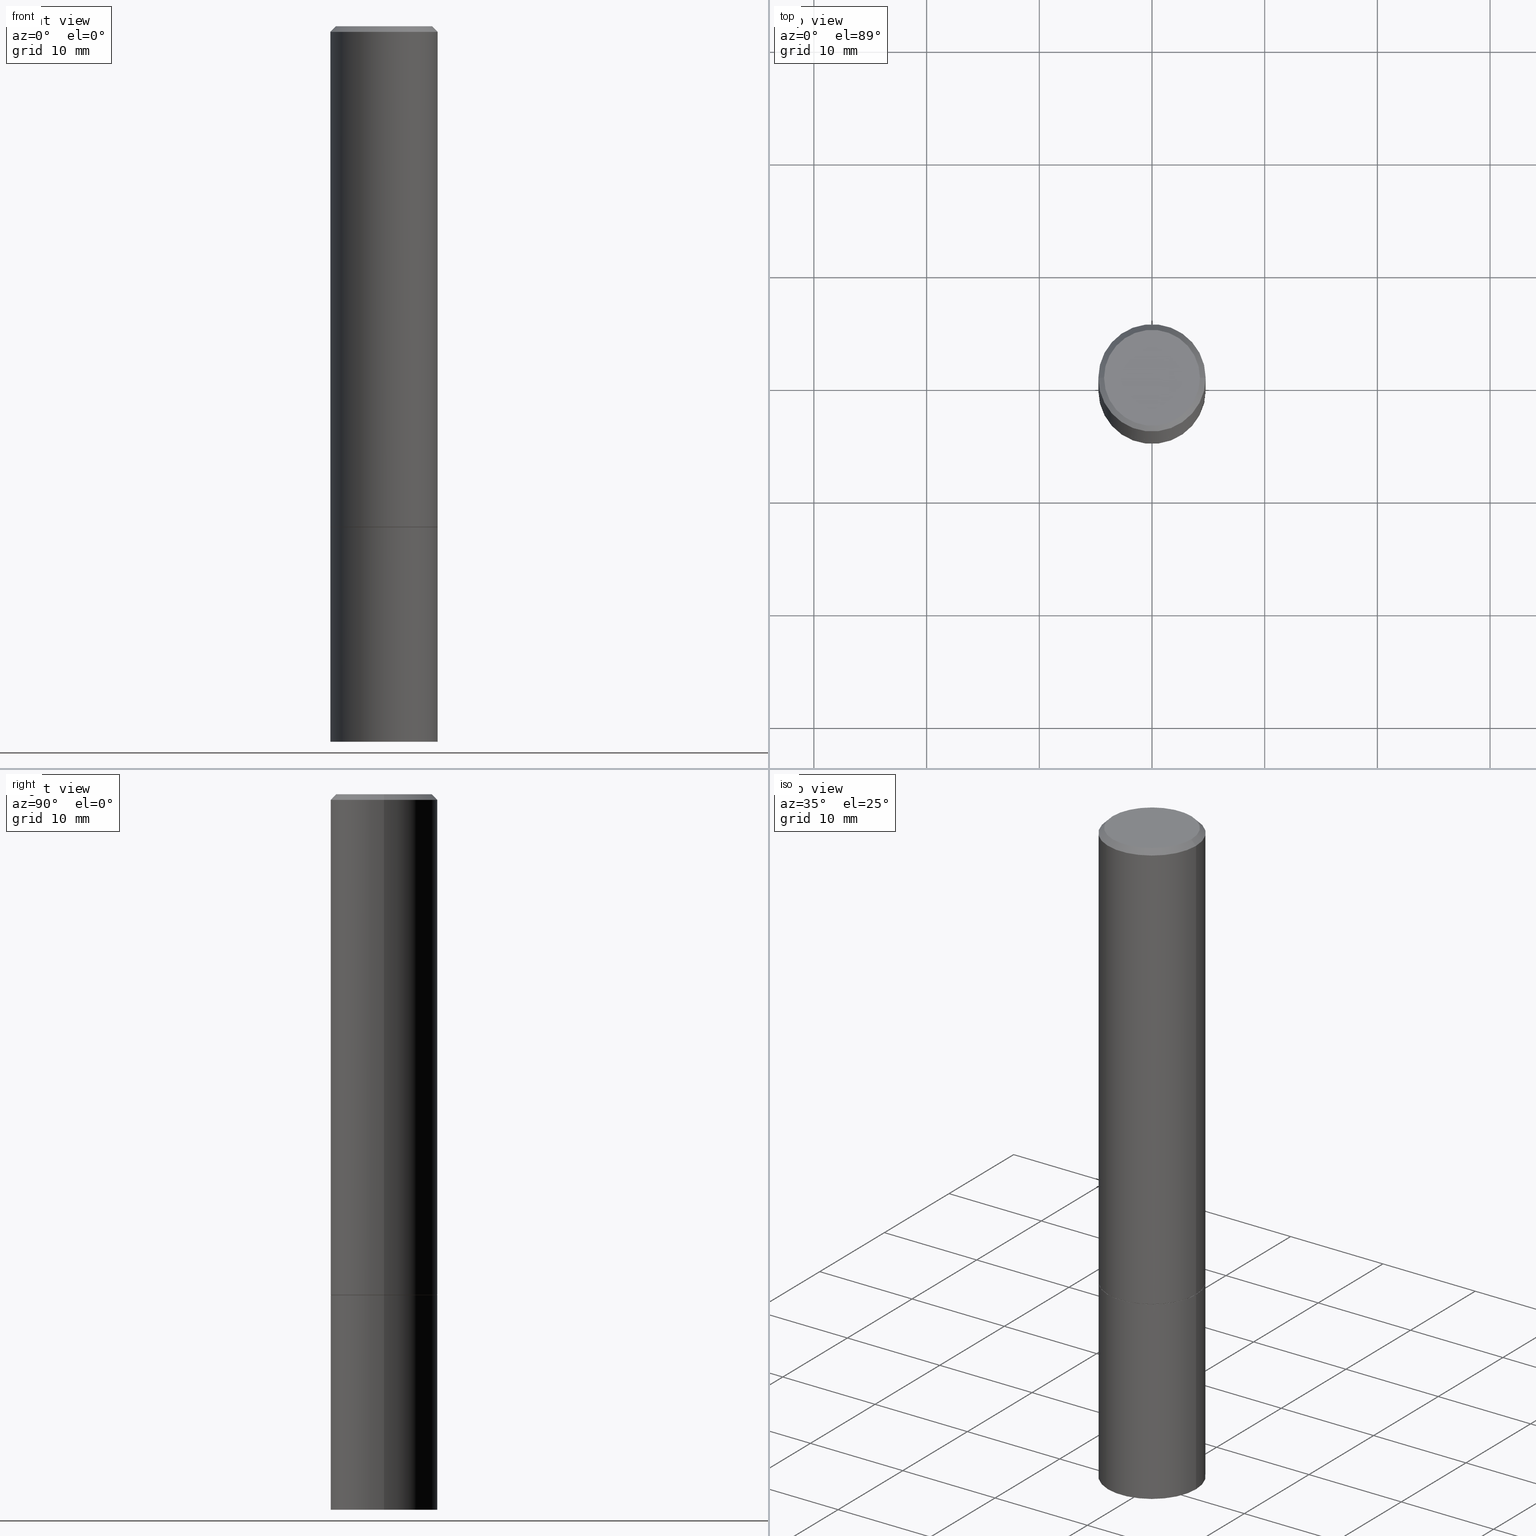
[diagram: canonical four-view strip — front | top / right | iso, engineering-drawing reading convention]
A machine part, canonical four-view strip (front | top / right | iso — engineering-drawing reading convention). The complete STEP part file that produces these views, byte-faithful:
ISO-10303-21;
HEADER;
FILE_DESCRIPTION (( 'STEP AP203' ),
    '1' );
FILE_NAME ('37021.STEP',
    '2024-02-27T20:12:07',
    ( '' ),
    ( '' ),
    'SwSTEP 2.0',
    'SolidWorks 2023',
    '' );
FILE_SCHEMA (( 'CONFIG_CONTROL_DESIGN' ));
ENDSEC;

DATA;
#1 = DESIGN_CONTEXT ( 'detailed design', #129, 'design' ) ;
#2 = CALENDAR_DATE ( 2024, 27, 2 ) ;
#3 = EDGE_LOOP ( 'NONE', ( #171, #86, #259, #351 ) ) ;
#4 = LINE ( 'NONE', #67, #323 ) ;
#5 = AXIS2_PLACEMENT_3D ( 'NONE', #74, #236, #71 ) ;
#6 = AXIS2_PLACEMENT_3D ( 'NONE', #128, #103, #337 ) ;
#7 = CARTESIAN_POINT ( 'NONE',  ( 0.1874999999999997502, -1.356173001359023494E-15, -0.02000000000000004552 ) ) ;
#8 = CYLINDRICAL_SURFACE ( 'NONE', #131, 0.1874999999999998890 ) ;
#9 = ORIENTED_EDGE ( 'NONE', *, *, #292, .F. ) ;
#10 = DIRECTION ( 'NONE',  ( -2.445468806185136597E-29, 3.491481338843145583E-15, 1.000000000000000000 ) ) ;
#11 = AXIS2_PLACEMENT_3D ( 'NONE', #125, #265, #120 ) ;
#12 = DIRECTION ( 'NONE',  ( -2.445468806185136597E-29, 3.491481338843145583E-15, 1.000000000000000000 ) ) ;
#13 = APPROVAL_ROLE ( '' ) ;
#14 = FACE_OUTER_BOUND ( 'NONE', #207, .T. ) ;
#15 = LINE ( 'NONE', #239, #87 ) ;
#16 = EDGE_CURVE ( 'NONE', #47, #347, #82, .T. ) ;
#17 = FACE_OUTER_BOUND ( 'NONE', #28, .T. ) ;
#18 = DIRECTION ( 'NONE',  ( 1.000000000000000000, -6.982962677686266711E-15, 0.000000000000000000 ) ) ;
#19 = DIRECTION ( 'NONE',  ( -2.445468806185136597E-29, 3.491481338843145583E-15, 1.000000000000000000 ) ) ;
#20 = ADVANCED_FACE ( 'NONE', ( #209 ), #200, .T. ) ;
#21 = MECHANICAL_CONTEXT ( 'NONE', #309, 'mechanical' ) ;
#22 = AXIS2_PLACEMENT_3D ( 'NONE', #36, #167, #346 ) ;
#23 = ADVANCED_FACE ( 'NONE', ( #307 ), #117, .F. ) ;
#24 = DIRECTION ( 'NONE',  ( 1.000000000000000000, 0.000000000000000000, 0.000000000000000000 ) ) ;
#25 = CC_DESIGN_SECURITY_CLASSIFICATION ( #156, ( #336 ) ) ;
#26 = CARTESIAN_POINT ( 'NONE',  ( 0.1875000000000000278, -1.003800884917403995E-14, -2.500000000000000000 ) ) ;
#27 = EDGE_CURVE ( 'NONE', #108, #229, #141, .T. ) ;
#28 = EDGE_LOOP ( 'NONE', ( #142, #268, #341, #315 ) ) ;
#29 = ORIENTED_EDGE ( 'NONE', *, *, #176, .T. ) ;
#30 = VERTEX_POINT ( 'NONE', #139 ) ;
#31 = CC_DESIGN_APPROVAL ( #340, ( #156 ) ) ;
#32 = LINE ( 'NONE', #135, #331 ) ;
#33 = ORIENTED_EDGE ( 'NONE', *, *, #295, .T. ) ;
#34 = PERSON_AND_ORGANIZATION_ROLE ( 'classification_officer' ) ;
#35 = EDGE_CURVE ( 'NONE', #179, #198, #226, .T. ) ;
#36 = CARTESIAN_POINT ( 'NONE',  ( 0.000000000000000000, 0.000000000000000000, 0.000000000000000000 ) ) ;
#37 = ORIENTED_EDGE ( 'NONE', *, *, #257, .T. ) ;
#38 = ADVANCED_FACE ( 'NONE', ( #258 ), #8, .T. ) ;
#39 = UNCERTAINTY_MEASURE_WITH_UNIT (LENGTH_MEASURE( 1.000000000000000082E-05 ), #334, 'distance_accuracy_value', 'NONE');
#40 = CARTESIAN_POINT ( 'NONE',  ( 0.000000000000000000, 0.000000000000000000, 0.000000000000000000 ) ) ;
#41 = COORDINATED_UNIVERSAL_TIME_OFFSET ( 5, 0, .BEHIND. ) ;
#42 = CIRCLE ( 'NONE', #94, 0.1875000000000000278 ) ;
#43 = DIRECTION ( 'NONE',  ( -2.438088387897960049E-29, 3.491481338843145188E-15, 1.000000000000000000 ) ) ;
#44 = ORIENTED_EDGE ( 'NONE', *, *, #320, .F. ) ;
#45 = APPROVAL_DATE_TIME ( #291, #246 ) ;
#46 = DIRECTION ( 'NONE',  ( 1.000000000000000000, -6.982962677686265922E-15, 4.876176775795935793E-29 ) ) ;
#47 = VERTEX_POINT ( 'NONE', #256 ) ;
#48 = PLANE ( 'NONE',  #212 ) ;
#49 = AXIS2_PLACEMENT_3D ( 'NONE', #40, #58, #262 ) ;
#50 = LOCAL_TIME ( 15, 12, 7.000000000000000000, #194 ) ;
#51 = DIRECTION ( 'NONE',  ( -2.445468806185136597E-29, 3.491481338843145583E-15, 1.000000000000000000 ) ) ;
#52 = DIRECTION ( 'NONE',  ( 1.000000000000000000, -6.982962677686265922E-15, 0.000000000000000000 ) ) ;
#53 = DIRECTION ( 'NONE',  ( -2.445468806185136597E-29, 3.491481338843145583E-15, 1.000000000000000000 ) ) ;
#54 = DIRECTION ( 'NONE',  ( -0.7071067811865112684, 7.493145998870223209E-15, 0.7071067811865837660 ) ) ;
#55 = CIRCLE ( 'NONE', #145, 0.1875000000000000278 ) ;
#56 = APPROVAL_STATUS ( 'not_yet_approved' ) ;
#57 = AXIS2_PLACEMENT_3D ( 'NONE', #95, #51, #152 ) ;
#58 = DIRECTION ( 'NONE',  ( -2.445468806185136597E-29, 3.491481338843145583E-15, 1.000000000000000000 ) ) ;
#59 = ORIENTED_EDGE ( 'NONE', *, *, #248, .F. ) ;
#60 = DIRECTION ( 'NONE',  ( -1.000000000000000000, 6.982962677686265133E-15, 0.000000000000000000 ) ) ;
#61 = AXIS2_PLACEMENT_3D ( 'NONE', #282, #231, #81 ) ;
#62 = ORIENTED_EDGE ( 'NONE', *, *, #97, .F. ) ;
#63 = DATE_AND_TIME ( #303, #50 ) ;
#64 = DIRECTION ( 'NONE',  ( 1.000000000000000000, -6.982962677686265922E-15, 4.876176775795935793E-29 ) ) ;
#65 = ORIENTED_EDGE ( 'NONE', *, *, #286, .T. ) ;
#66 = APPROVAL_STATUS ( 'not_yet_approved' ) ;
#67 = CARTESIAN_POINT ( 'NONE',  ( -0.1874999999999998890, 1.332267629550187060E-15, -9.223003294227942385E-30 ) ) ;
#68 = PERSON_AND_ORGANIZATION ( #311, #89 ) ;
#69 = DIRECTION ( 'NONE',  ( -2.445468806185136597E-29, 3.491481338843145583E-15, 1.000000000000000000 ) ) ;
#70 = LINE ( 'NONE', #298, #300 ) ;
#71 = DIRECTION ( 'NONE',  ( 1.000000000000000000, -6.982962677686265922E-15, 4.876176775795935793E-29 ) ) ;
#72 = EDGE_CURVE ( 'NONE', #30, #108, #277, .T. ) ;
#73 = VECTOR ( 'NONE', #318, 39.37007874015748143 ) ;
#74 = CARTESIAN_POINT ( 'NONE',  ( 0.000000000000000000, 0.000000000000000000, 0.000000000000000000 ) ) ;
#75 = ADVANCED_FACE ( 'NONE', ( #290 ), #116, .T. ) ;
#76 = PERSON_AND_ORGANIZATION_ROLE ( 'creator' ) ;
#77 = AXIS2_PLACEMENT_3D ( 'NONE', #217, #304, #365 ) ;
#78 = CARTESIAN_POINT ( 'NONE',  ( -0.1865000000000000546, -4.784930140782917831E-15, -1.750000000000000222 ) ) ;
#79 = CARTESIAN_POINT ( 'NONE',  ( 4.277124942017804562E-29, -6.106600861636661664E-15, -1.749000000000000110 ) ) ;
#80 = EDGE_CURVE ( 'NONE', #228, #174, #4, .T. ) ;
#81 = DIRECTION ( 'NONE',  ( -1.000000000000000000, 6.982962677686265922E-15, -4.876176775795935793E-29 ) ) ;
#82 = LINE ( 'NONE', #7, #314 ) ;
#83 = ORIENTED_EDGE ( 'NONE', *, *, #80, .F. ) ;
#84 = VERTEX_POINT ( 'NONE', #178 ) ;
#85 = COORDINATED_UNIVERSAL_TIME_OFFSET ( 5, 0, .BEHIND. ) ;
#86 = ORIENTED_EDGE ( 'NONE', *, *, #72, .T. ) ;
#87 = VECTOR ( 'NONE', #215, 39.37007874015748143 ) ;
#88 = EDGE_LOOP ( 'NONE', ( #44, #310 ) ) ;
#89 = ORGANIZATION ( 'UNSPECIFIED', 'UNSPECIFIED', '' ) ;
#90 = CARTESIAN_POINT ( 'NONE',  ( 1.309305502066236145E-15, 0.1874999999999912847, -2.500000000000000444 ) ) ;
#91 = EDGE_LOOP ( 'NONE', ( #111, #224, #65, #317 ) ) ;
#92 = PRODUCT_DEFINITION ( 'UNKNOWN', '', #336, #1 ) ;
#93 = CARTESIAN_POINT ( 'NONE',  ( 1.309305502066217804E-15, 0.1874999999999938938, -1.750000000000000666 ) ) ;
#94 = AXIS2_PLACEMENT_3D ( 'NONE', #157, #218, #279 ) ;
#95 = CARTESIAN_POINT ( 'NONE',  ( 4.890937612370284544E-31, -6.982962677686307633E-17, -0.02000000000000004552 ) ) ;
#96 = CARTESIAN_POINT ( 'NONE',  ( 4.277124942017804562E-29, -6.106600861636661664E-15, -1.749000000000000110 ) ) ;
#97 = EDGE_CURVE ( 'NONE', #47, #84, #293, .T. ) ;
#98 = DIRECTION ( 'NONE',  ( 2.438088387897960049E-29, -3.491481338843145188E-15, -1.000000000000000000 ) ) ;
#99 = CIRCLE ( 'NONE', #197, 0.1865000000000000546 ) ;
#100 =( LENGTH_UNIT ( ) NAMED_UNIT ( * ) SI_UNIT ( $, .METRE. ) );
#101 = PERSON_AND_ORGANIZATION ( #311, #89 ) ;
#102 = PERSON_AND_ORGANIZATION_ROLE ( 'design_owner' ) ;
#103 = DIRECTION ( 'NONE',  ( -2.445468806185136597E-29, 3.491481338843145583E-15, 1.000000000000000000 ) ) ;
#104 = AXIS2_PLACEMENT_3D ( 'NONE', #187, #19, #18 ) ;
#105 = CALENDAR_DATE ( 2024, 27, 2 ) ;
#106 = PERSON_AND_ORGANIZATION ( #311, #89 ) ;
#107 = VERTEX_POINT ( 'NONE', #284 ) ;
#108 = VERTEX_POINT ( 'NONE', #26 ) ;
#109 = AXIS2_PLACEMENT_3D ( 'NONE', #306, #10, #115 ) ;
#110 = LOCAL_TIME ( 15, 12, 7.000000000000000000, #41 ) ;
#111 = ORIENTED_EDGE ( 'NONE', *, *, #16, .F. ) ;
#112 = DIRECTION ( 'NONE',  ( 2.445468806185136597E-29, -3.491481338843145583E-15, -1.000000000000000000 ) ) ;
#113 = ORIENTED_EDGE ( 'NONE', *, *, #295, .F. ) ;
#114 = SECURITY_CLASSIFICATION_LEVEL ( 'unclassified' ) ;
#115 = DIRECTION ( 'NONE',  ( 1.000000000000000000, -6.982962677686266711E-15, 0.000000000000000000 ) ) ;
#116 = CONICAL_SURFACE ( 'NONE', #324, 0.1874999999999997502, 0.7853981633974469467 ) ;
#117 = PLANE ( 'NONE',  #61 ) ;
#118 = CARTESIAN_POINT ( 'NONE',  ( 0.1865000000000000546, -7.412414882363994454E-15, -1.750000000000000222 ) ) ;
#119 = EDGE_LOOP ( 'NONE', ( #83, #33, #136, #285 ) ) ;
#120 = DIRECTION ( 'NONE',  ( 1.000000000000000000, -6.982962677686265922E-15, 0.000000000000000000 ) ) ;
#121 = CC_DESIGN_DATE_AND_TIME_ASSIGNMENT ( #175, #345, ( #156 ) ) ;
#122 = CLOSED_SHELL ( 'NONE', ( #138, #269, #208, #20 ) ) ;
#123 = CONICAL_SURFACE ( 'NONE', #6, 0.1865000000000000546, 0.7853981633973970977 ) ;
#124 = CARTESIAN_POINT ( 'NONE',  ( -0.1874999999999997502, 1.239475875289309935E-15, -0.02000000000000004552 ) ) ;
#125 = CARTESIAN_POINT ( 'NONE',  ( 4.279570410823989044E-29, -6.110092342975505460E-15, -1.750000000000000222 ) ) ;
#126 = CARTESIAN_POINT ( 'NONE',  ( -0.1875000000000000278, -6.087130215491496564E-15, -1.750000000000000222 ) ) ;
#127 = DATE_AND_TIME ( #105, #206 ) ;
#128 = CARTESIAN_POINT ( 'NONE',  ( 4.279570410823989044E-29, -6.110092342975505460E-15, -1.750000000000000222 ) ) ;
#129 = APPLICATION_CONTEXT ( 'configuration controlled 3d designs of mechanical parts and assemblies' ) ;
#130 = APPLICATION_PROTOCOL_DEFINITION ( 'international standard', 'config_control_design', 1994, #129 ) ;
#131 = AXIS2_PLACEMENT_3D ( 'NONE', #280, #12, #64 ) ;
#132 = EDGE_CURVE ( 'NONE', #179, #107, #32, .T. ) ;
#133 = ADVANCED_FACE ( 'NONE', ( #330 ), #349, .T. ) ;
#134 = CC_DESIGN_DATE_AND_TIME_ASSIGNMENT ( #63, #180, ( #92 ) ) ;
#135 = CARTESIAN_POINT ( 'NONE',  ( 0.1865000000000000546, -7.412414882363994454E-15, -1.750000000000000222 ) ) ;
#136 = ORIENTED_EDGE ( 'NONE', *, *, #221, .T. ) ;
#137 = DIRECTION ( 'NONE',  ( 1.000000000000000000, -6.982962677686265922E-15, 0.000000000000000000 ) ) ;
#138 = ADVANCED_FACE ( 'NONE', ( #17 ), #148, .T. ) ;
#139 = CARTESIAN_POINT ( 'NONE',  ( -0.1875000000000000278, -6.087130215491496564E-15, -2.500000000000000000 ) ) ;
#140 = EDGE_LOOP ( 'NONE', ( #281, #201, #151, #237 ) ) ;
#141 = LINE ( 'NONE', #254, #73 ) ;
#142 = ORIENTED_EDGE ( 'NONE', *, *, #320, .T. ) ;
#143 = DIRECTION ( 'NONE',  ( 0.7071067811865465735, -7.319954787623252890E-15, -0.7071067811865484609 ) ) ;
#144 = EDGE_CURVE ( 'NONE', #107, #228, #155, .T. ) ;
#145 = AXIS2_PLACEMENT_3D ( 'NONE', #79, #53, #162 ) ;
#146 = CARTESIAN_POINT ( 'NONE',  ( 4.890937612370284544E-31, -6.982962677686307633E-17, -0.02000000000000004552 ) ) ;
#147 = CC_DESIGN_PERSON_AND_ORGANIZATION_ASSIGNMENT ( #287, #34, ( #156 ) ) ;
#148 = CYLINDRICAL_SURFACE ( 'NONE', #5, 0.1875000000000000278 ) ;
#149 = ORIENTED_EDGE ( 'NONE', *, *, #16, .T. ) ;
#150 = CARTESIAN_POINT ( 'NONE',  ( -0.1875000000000000278, -1.755947614656572266E-15, -1.749000000000000110 ) ) ;
#151 = ORIENTED_EDGE ( 'NONE', *, *, #144, .F. ) ;
#152 = DIRECTION ( 'NONE',  ( 1.000000000000000000, -6.982962677686265133E-15, 0.000000000000000000 ) ) ;
#153 = DIRECTION ( 'NONE',  ( -1.000000000000000000, 6.982962677686265133E-15, 0.000000000000000000 ) ) ;
#154 = EDGE_CURVE ( 'NONE', #229, #260, #204, .T. ) ;
#155 = CIRCLE ( 'NONE', #267, 0.1875000000000000278 ) ;
#156 = SECURITY_CLASSIFICATION ( '', '', #114 ) ;
#157 = CARTESIAN_POINT ( 'NONE',  ( 6.113672015462842613E-29, -8.728703347107864943E-15, -2.500000000000000000 ) ) ;
#158 = FACE_OUTER_BOUND ( 'NONE', #232, .T. ) ;
#159 = CARTESIAN_POINT ( 'NONE',  ( 0.000000000000000000, 0.000000000000000000, 0.000000000000000000 ) ) ;
#160 = PRODUCT_RELATED_PRODUCT_CATEGORY ( 'detail', '', ( #276 ) ) ;
#161 = ADVANCED_FACE ( 'NONE', ( #264 ), #195, .T. ) ;
#162 = DIRECTION ( 'NONE',  ( 1.000000000000000000, -6.982962677686266711E-15, 0.000000000000000000 ) ) ;
#163 = AXIS2_PLACEMENT_3D ( 'NONE', #146, #294, #153 ) ;
#164 = AXIS2_PLACEMENT_3D ( 'NONE', #159, #364, #24 ) ;
#165 = ORIENTED_EDGE ( 'NONE', *, *, #248, .T. ) ;
#166 = MANIFOLD_SOLID_BREP ( 'Body-Move/Copy2[2]', #272 ) ;
#167 = DIRECTION ( 'NONE',  ( -2.445468806185136597E-29, 3.491481338843145583E-15, 1.000000000000000000 ) ) ;
#168 = ORIENTED_EDGE ( 'NONE', *, *, #286, .F. ) ;
#169 = AXIS2_PLACEMENT_3D ( 'NONE', #205, #234, #137 ) ;
#170 = DIRECTION ( 'NONE',  ( -2.445468806185136877E-29, 3.491481338843145188E-15, 1.000000000000000000 ) ) ;
#171 = ORIENTED_EDGE ( 'NONE', *, *, #199, .F. ) ;
#172 = PERSON_AND_ORGANIZATION ( #311, #89 ) ;
#173 = MANIFOLD_SOLID_BREP ( 'Body-Move/Copy2[1]', #122 ) ;
#174 = VERTEX_POINT ( 'NONE', #124 ) ;
#175 = DATE_AND_TIME ( #2, #110 ) ;
#176 = EDGE_CURVE ( 'NONE', #260, #229, #233, .T. ) ;
#177 = DIMENSIONAL_EXPONENTS ( 1.000000000000000000, 0.000000000000000000, 0.000000000000000000, 0.000000000000000000, 0.000000000000000000, 0.000000000000000000, 0.000000000000000000 ) ;
#178 = CARTESIAN_POINT ( 'NONE',  ( -0.1674999999999997602, 1.204561061900878878E-15, -8.301862719484099178E-30 ) ) ;
#179 = VERTEX_POINT ( 'NONE', #118 ) ;
#180 = DATE_TIME_ROLE ( 'creation_date' ) ;
#181 = CARTESIAN_POINT ( 'NONE',  ( 4.279570410823989044E-29, -6.110092342975505460E-15, -1.750000000000000222 ) ) ;
#182 = CIRCLE ( 'NONE', #57, 0.1874999999999997502 ) ;
#183 = CC_DESIGN_APPROVAL ( #246, ( #336 ) ) ;
#184 = CC_DESIGN_PERSON_AND_ORGANIZATION_ASSIGNMENT ( #252, #230, ( #336 ) ) ;
#185 = DIRECTION ( 'NONE',  ( 1.000000000000000000, -6.982962677686266711E-15, 0.000000000000000000 ) ) ;
#186 = DATE_AND_TIME ( #348, #332 ) ;
#187 = CARTESIAN_POINT ( 'NONE',  ( 4.279570410823989044E-29, -6.110092342975505460E-15, -1.750000000000000222 ) ) ;
#188 = ORIENTED_EDGE ( 'NONE', *, *, #144, .T. ) ;
#189 = CARTESIAN_POINT ( 'NONE',  ( 4.279570410823989044E-29, -6.110092342975505460E-15, -1.750000000000000222 ) ) ;
#190 = AXIS2_PLACEMENT_3D ( 'NONE', #181, #271, #358 ) ;
#191 = DIRECTION ( 'NONE',  ( 1.000000000000000000, -6.982962677686265922E-15, 4.876176775795935793E-29 ) ) ;
#192 = ADVANCED_FACE ( 'NONE', ( #14 ), #48, .F. ) ;
#193 =( NAMED_UNIT ( * ) PLANE_ANGLE_UNIT ( ) SI_UNIT ( $, .RADIAN. ) );
#194 = COORDINATED_UNIVERSAL_TIME_OFFSET ( 5, 0, .BEHIND. ) ;
#195 = CONICAL_SURFACE ( 'NONE', #163, 0.1874999999999997502, 0.7853981633974469467 ) ;
#196 = CARTESIAN_POINT ( 'NONE',  ( 0.1874999999999997502, -1.356173001359023494E-15, -0.02000000000000004552 ) ) ;
#197 = AXIS2_PLACEMENT_3D ( 'NONE', #213, #241, #52 ) ;
#198 = VERTEX_POINT ( 'NONE', #210 ) ;
#199 = EDGE_CURVE ( 'NONE', #30, #260, #355, .T. ) ;
#200 = CYLINDRICAL_SURFACE ( 'NONE', #22, 0.1875000000000000278 ) ;
#201 = ORIENTED_EDGE ( 'NONE', *, *, #292, .T. ) ;
#202 = ORIENTED_EDGE ( 'NONE', *, *, #132, .T. ) ;
#203 = APPROVAL_DATE_TIME ( #186, #340 ) ;
#204 = CIRCLE ( 'NONE', #104, 0.1875000000000000278 ) ;
#205 = CARTESIAN_POINT ( 'NONE',  ( 4.279570410823989044E-29, -6.110092342975505460E-15, -1.750000000000000222 ) ) ;
#206 = LOCAL_TIME ( 15, 12, 7.000000000000000000, #302 ) ;
#207 = EDGE_LOOP ( 'NONE', ( #283, #353 ) ) ;
#208 = ADVANCED_FACE ( 'NONE', ( #297 ), #301, .F. ) ;
#209 = FACE_OUTER_BOUND ( 'NONE', #3, .T. ) ;
#210 = CARTESIAN_POINT ( 'NONE',  ( -0.1865000000000000546, -4.779631686434696217E-15, -1.750000000000000222 ) ) ;
#211 = CARTESIAN_POINT ( 'NONE',  ( 0.000000000000000000, 0.000000000000000000, 0.000000000000000000 ) ) ;
#212 = AXIS2_PLACEMENT_3D ( 'NONE', #189, #43, #191 ) ;
#213 = CARTESIAN_POINT ( 'NONE',  ( 4.279570410823989044E-29, -6.110092342975505460E-15, -1.750000000000000222 ) ) ;
#214 = DIRECTION ( 'NONE',  ( -2.445468806185136877E-29, 3.491481338843145188E-15, 1.000000000000000000 ) ) ;
#215 = DIRECTION ( 'NONE',  ( -2.445468806185136877E-29, 3.491481338843145188E-15, 1.000000000000000000 ) ) ;
#216 = CIRCLE ( 'NONE', #244, 0.1674999999999997602 ) ;
#217 = CARTESIAN_POINT ( 'NONE',  ( 0.000000000000000000, 0.000000000000000000, 0.000000000000000000 ) ) ;
#218 = DIRECTION ( 'NONE',  ( -2.445468806185136597E-29, 3.491481338843145583E-15, 1.000000000000000000 ) ) ;
#219 = CC_DESIGN_PERSON_AND_ORGANIZATION_ASSIGNMENT ( #106, #238, ( #336 ) ) ;
#220 = PERSON_AND_ORGANIZATION ( #311, #89 ) ;
#221 = EDGE_CURVE ( 'NONE', #107, #347, #15, .T. ) ;
#222 = PRODUCT_DEFINITION_SHAPE ( 'NONE', 'NONE',  #92 ) ;
#223 = ORIENTED_EDGE ( 'NONE', *, *, #221, .F. ) ;
#224 = ORIENTED_EDGE ( 'NONE', *, *, #247, .F. ) ;
#225 = CC_DESIGN_PERSON_AND_ORGANIZATION_ASSIGNMENT ( #360, #102, ( #276 ) ) ;
#226 = CIRCLE ( 'NONE', #169, 0.1865000000000000546 ) ;
#227 = APPROVAL_PERSON_ORGANIZATION ( #68, #340, #13 ) ;
#228 = VERTEX_POINT ( 'NONE', #150 ) ;
#229 = VERTEX_POINT ( 'NONE', #299 ) ;
#230 = PERSON_AND_ORGANIZATION_ROLE ( 'creator' ) ;
#231 = DIRECTION ( 'NONE',  ( 2.438088387897960049E-29, -3.491481338843145188E-15, -1.000000000000000000 ) ) ;
#232 = EDGE_LOOP ( 'NONE', ( #9, #37, #202, #113 ) ) ;
#233 = CIRCLE ( 'NONE', #190, 0.1875000000000000278 ) ;
#234 = DIRECTION ( 'NONE',  ( -2.445468806185136597E-29, 3.491481338843145583E-15, 1.000000000000000000 ) ) ;
#235 = ORIENTED_EDGE ( 'NONE', *, *, #80, .T. ) ;
#236 = DIRECTION ( 'NONE',  ( -2.445468806185136597E-29, 3.491481338843145583E-15, 1.000000000000000000 ) ) ;
#237 = ORIENTED_EDGE ( 'NONE', *, *, #132, .F. ) ;
#238 = PERSON_AND_ORGANIZATION_ROLE ( 'design_supplier' ) ;
#239 = CARTESIAN_POINT ( 'NONE',  ( 0.1874999999999998890, -1.309305502066174022E-15, 9.142831454617374006E-30 ) ) ;
#240 = VECTOR ( 'NONE', #54, 39.37007874015748143 ) ;
#241 = DIRECTION ( 'NONE',  ( -2.445468806185136597E-29, 3.491481338843145583E-15, 1.000000000000000000 ) ) ;
#242 = CC_DESIGN_PERSON_AND_ORGANIZATION_ASSIGNMENT ( #101, #76, ( #92 ) ) ;
#243 = DIRECTION ( 'NONE',  ( -2.445468806185136597E-29, 3.491481338843145583E-15, 1.000000000000000000 ) ) ;
#244 = AXIS2_PLACEMENT_3D ( 'NONE', #211, #69, #46 ) ;
#245 = APPROVAL_DATE_TIME ( #127, #316 ) ;
#246 = APPROVAL ( #66, 'UNSPECIFIED' ) ;
#247 = EDGE_CURVE ( 'NONE', #84, #47, #216, .T. ) ;
#248 = EDGE_CURVE ( 'NONE', #347, #174, #182, .T. ) ;
#249 = DIRECTION ( 'NONE',  ( -2.445468806185136597E-29, 3.491481338843145583E-15, 1.000000000000000000 ) ) ;
#250 = AXIS2_PLACEMENT_3D ( 'NONE', #93, #98, #266 ) ;
#251 = APPROVAL_ROLE ( '' ) ;
#252 = PERSON_AND_ORGANIZATION ( #311, #89 ) ;
#253 = EDGE_LOOP ( 'NONE', ( #313, #289 ) ) ;
#254 = CARTESIAN_POINT ( 'NONE',  ( 0.1875000000000000278, -1.309305502066175008E-15, 9.142831454617381013E-30 ) ) ;
#255 = AXIS2_PLACEMENT_3D ( 'NONE', #275, #249, #366 ) ;
#256 = CARTESIAN_POINT ( 'NONE',  ( 0.1674999999999997602, -1.252653207992876711E-15, 8.469775550109228175E-30 ) ) ;
#257 = EDGE_CURVE ( 'NONE', #198, #179, #99, .T. ) ;
#258 = FACE_OUTER_BOUND ( 'NONE', #350, .T. ) ;
#259 = ORIENTED_EDGE ( 'NONE', *, *, #27, .T. ) ;
#260 = VERTEX_POINT ( 'NONE', #126 ) ;
#261 = VECTOR ( 'NONE', #214, 39.37007874015748143 ) ;
#262 = DIRECTION ( 'NONE',  ( 1.000000000000000000, -6.982962677686265922E-15, 4.876176775795935793E-29 ) ) ;
#263 = APPROVAL_STATUS ( 'not_yet_approved' ) ;
#264 = FACE_OUTER_BOUND ( 'NONE', #91, .T. ) ;
#265 = DIRECTION ( 'NONE',  ( -2.445468806185136597E-29, 3.491481338843145583E-15, 1.000000000000000000 ) ) ;
#266 = DIRECTION ( 'NONE',  ( -1.000000000000000000, 6.982962677686265922E-15, -4.876176775795935793E-29 ) ) ;
#267 = AXIS2_PLACEMENT_3D ( 'NONE', #96, #243, #185 ) ;
#268 = ORIENTED_EDGE ( 'NONE', *, *, #199, .T. ) ;
#269 = ADVANCED_FACE ( 'NONE', ( #352 ), #329, .T. ) ;
#270 = DIRECTION ( 'NONE',  ( -0.7071067811865465735, 2.468850131082246805E-15, -0.7071067811865484609 ) ) ;
#271 = DIRECTION ( 'NONE',  ( -2.445468806185136597E-29, 3.491481338843145583E-15, 1.000000000000000000 ) ) ;
#272 = CLOSED_SHELL ( 'NONE', ( #133, #38, #75, #161, #333, #338, #192, #23 ) ) ;
#273 = FACE_OUTER_BOUND ( 'NONE', #119, .T. ) ;
#274 =( NAMED_UNIT ( * ) SI_UNIT ( $, .STERADIAN. ) SOLID_ANGLE_UNIT ( ) );
#275 = CARTESIAN_POINT ( 'NONE',  ( 4.890937612370284544E-31, -6.982962677686307633E-17, -0.02000000000000004552 ) ) ;
#276 = PRODUCT ( '37021', '37021', '', ( #21 ) ) ;
#277 = CIRCLE ( 'NONE', #109, 0.1875000000000000278 ) ;
#278 = APPROVAL_PERSON_ORGANIZATION ( #172, #246, #354 ) ;
#279 = DIRECTION ( 'NONE',  ( 1.000000000000000000, -6.982962677686266711E-15, 0.000000000000000000 ) ) ;
#280 = CARTESIAN_POINT ( 'NONE',  ( 0.000000000000000000, 0.000000000000000000, 0.000000000000000000 ) ) ;
#281 = ORIENTED_EDGE ( 'NONE', *, *, #35, .T. ) ;
#282 = CARTESIAN_POINT ( 'NONE',  ( 1.169646248512447820E-15, 0.1674999999999997602, -5.848231242562259809E-16 ) ) ;
#283 = ORIENTED_EDGE ( 'NONE', *, *, #35, .F. ) ;
#284 = CARTESIAN_POINT ( 'NONE',  ( 0.1875000000000000278, -7.415906363702837461E-15, -1.749000000000000110 ) ) ;
#285 = ORIENTED_EDGE ( 'NONE', *, *, #308, .F. ) ;
#286 = EDGE_CURVE ( 'NONE', #84, #174, #70, .T. ) ;
#287 = PERSON_AND_ORGANIZATION ( #311, #89 ) ;
#288 = ORIENTED_EDGE ( 'NONE', *, *, #154, .T. ) ;
#289 = ORIENTED_EDGE ( 'NONE', *, *, #97, .T. ) ;
#290 = FACE_OUTER_BOUND ( 'NONE', #344, .T. ) ;
#291 = DATE_AND_TIME ( #319, #356 ) ;
#292 = EDGE_CURVE ( 'NONE', #198, #228, #359, .T. ) ;
#293 = CIRCLE ( 'NONE', #49, 0.1674999999999997602 ) ;
#294 = DIRECTION ( 'NONE',  ( 2.445468806185136597E-29, -3.491481338843145583E-15, -1.000000000000000000 ) ) ;
#295 = EDGE_CURVE ( 'NONE', #228, #107, #55, .T. ) ;
#296 = SHAPE_DEFINITION_REPRESENTATION ( #222, #327 ) ;
#297 = FACE_OUTER_BOUND ( 'NONE', #343, .T. ) ;
#298 = CARTESIAN_POINT ( 'NONE',  ( -0.1874999999999997502, 1.239475875289309935E-15, -0.02000000000000004552 ) ) ;
#299 = CARTESIAN_POINT ( 'NONE',  ( 0.1875000000000000278, -7.419397845041680468E-15, -1.750000000000000222 ) ) ;
#300 = VECTOR ( 'NONE', #270, 39.37007874015748143 ) ;
#301 = PLANE ( 'NONE',  #250 ) ;
#302 = COORDINATED_UNIVERSAL_TIME_OFFSET ( 5, 0, .BEHIND. ) ;
#303 = CALENDAR_DATE ( 2024, 27, 2 ) ;
#304 = DIRECTION ( 'NONE',  ( -2.445468806185136597E-29, 3.491481338843145583E-15, 1.000000000000000000 ) ) ;
#305 = AXIS2_PLACEMENT_3D ( 'NONE', #90, #321, #328 ) ;
#306 = CARTESIAN_POINT ( 'NONE',  ( 6.113672015462842613E-29, -8.728703347107864943E-15, -2.500000000000000000 ) ) ;
#307 = FACE_OUTER_BOUND ( 'NONE', #253, .T. ) ;
#308 = EDGE_CURVE ( 'NONE', #174, #347, #361, .T. ) ;
#309 = APPLICATION_CONTEXT ( 'configuration controlled 3d designs of mechanical parts and assemblies' ) ;
#310 = ORIENTED_EDGE ( 'NONE', *, *, #72, .F. ) ;
#311 = PERSON ( 'UNSPECIFIED', 'UNSPECIFIED', 'UNSPECIFIED', ('UNSPECIFIED'), ('UNSPECIFIED'), ('UNSPECIFIED') ) ;
#312 = CARTESIAN_POINT ( 'NONE',  ( 4.890937612370284544E-31, -6.982962677686307633E-17, -0.02000000000000004552 ) ) ;
#313 = ORIENTED_EDGE ( 'NONE', *, *, #247, .T. ) ;
#314 = VECTOR ( 'NONE', #143, 39.37007874015748143 ) ;
#315 = ORIENTED_EDGE ( 'NONE', *, *, #27, .F. ) ;
#316 = APPROVAL ( #56, 'UNSPECIFIED' ) ;
#317 = ORIENTED_EDGE ( 'NONE', *, *, #308, .T. ) ;
#318 = DIRECTION ( 'NONE',  ( -2.445468806185136877E-29, 3.491481338843145188E-15, 1.000000000000000000 ) ) ;
#319 = CALENDAR_DATE ( 2024, 27, 2 ) ;
#320 = EDGE_CURVE ( 'NONE', #108, #30, #42, .T. ) ;
#321 = DIRECTION ( 'NONE',  ( 2.438088387897960049E-29, -3.491481338843145188E-15, -1.000000000000000000 ) ) ;
#322 = COORDINATED_UNIVERSAL_TIME_OFFSET ( 5, 0, .BEHIND. ) ;
#323 = VECTOR ( 'NONE', #170, 39.37007874015748143 ) ;
#324 = AXIS2_PLACEMENT_3D ( 'NONE', #312, #112, #60 ) ;
#325 = DIRECTION ( 'NONE',  ( 0.7071067811865112684, -2.468850131081876830E-15, 0.7071067811865837660 ) ) ;
#326 = APPROVAL_PERSON_ORGANIZATION ( #220, #316, #251 ) ;
#327 = ADVANCED_BREP_SHAPE_REPRESENTATION ( '37021', ( #173, #166, #164 ), #342 ) ;
#328 = DIRECTION ( 'NONE',  ( -1.000000000000000000, 6.982962677686265922E-15, -4.876176775795935793E-29 ) ) ;
#329 = PLANE ( 'NONE',  #305 ) ;
#330 = FACE_OUTER_BOUND ( 'NONE', #140, .T. ) ;
#331 = VECTOR ( 'NONE', #325, 39.37007874015748143 ) ;
#332 = LOCAL_TIME ( 15, 12, 7.000000000000000000, #85 ) ;
#333 = ADVANCED_FACE ( 'NONE', ( #273 ), #335, .T. ) ;
#334 =( CONVERSION_BASED_UNIT ( 'INCH', #339 ) LENGTH_UNIT ( ) NAMED_UNIT ( #177 ) );
#335 = CYLINDRICAL_SURFACE ( 'NONE', #77, 0.1874999999999998890 ) ;
#336 = PRODUCT_DEFINITION_FORMATION_WITH_SPECIFIED_SOURCE ( 'ANY', '', #276, .NOT_KNOWN. ) ;
#337 = DIRECTION ( 'NONE',  ( 1.000000000000000000, -6.982962677686265922E-15, 0.000000000000000000 ) ) ;
#338 = ADVANCED_FACE ( 'NONE', ( #158 ), #123, .T. ) ;
#339 = LENGTH_MEASURE_WITH_UNIT ( LENGTH_MEASURE( 0.02539999999999999897 ), #100 );
#340 = APPROVAL ( #263, 'UNSPECIFIED' ) ;
#341 = ORIENTED_EDGE ( 'NONE', *, *, #154, .F. ) ;
#342 =( GEOMETRIC_REPRESENTATION_CONTEXT ( 3 ) GLOBAL_UNCERTAINTY_ASSIGNED_CONTEXT ( ( #39 ) ) GLOBAL_UNIT_ASSIGNED_CONTEXT ( ( #334, #193, #274 ) ) REPRESENTATION_CONTEXT ( 'NONE', 'WORKASPACE' ) );
#343 = EDGE_LOOP ( 'NONE', ( #288, #29 ) ) ;
#344 = EDGE_LOOP ( 'NONE', ( #62, #149, #165, #168 ) ) ;
#345 = DATE_TIME_ROLE ( 'classification_date' ) ;
#346 = DIRECTION ( 'NONE',  ( 1.000000000000000000, -6.982962677686265922E-15, 4.876176775795935793E-29 ) ) ;
#347 = VERTEX_POINT ( 'NONE', #196 ) ;
#348 = CALENDAR_DATE ( 2024, 27, 2 ) ;
#349 = CONICAL_SURFACE ( 'NONE', #11, 0.1865000000000000546, 0.7853981633973970977 ) ;
#350 = EDGE_LOOP ( 'NONE', ( #188, #235, #59, #223 ) ) ;
#351 = ORIENTED_EDGE ( 'NONE', *, *, #176, .F. ) ;
#352 = FACE_OUTER_BOUND ( 'NONE', #88, .T. ) ;
#353 = ORIENTED_EDGE ( 'NONE', *, *, #257, .F. ) ;
#354 = APPROVAL_ROLE ( '' ) ;
#355 = LINE ( 'NONE', #357, #261 ) ;
#356 = LOCAL_TIME ( 15, 12, 7.000000000000000000, #322 ) ;
#357 = CARTESIAN_POINT ( 'NONE',  ( -0.1875000000000000278, 1.332267629550188046E-15, -9.223003294227947991E-30 ) ) ;
#358 = DIRECTION ( 'NONE',  ( 1.000000000000000000, -6.982962677686266711E-15, 0.000000000000000000 ) ) ;
#359 = LINE ( 'NONE', #78, #240 ) ;
#360 = PERSON_AND_ORGANIZATION ( #311, #89 ) ;
#361 = CIRCLE ( 'NONE', #255, 0.1874999999999997502 ) ;
#362 = CC_DESIGN_APPROVAL ( #316, ( #92 ) ) ;
#363 = APPLICATION_PROTOCOL_DEFINITION ( 'international standard', 'config_control_design', 1994, #309 ) ;
#364 = DIRECTION ( 'NONE',  ( 0.000000000000000000, 0.000000000000000000, 1.000000000000000000 ) ) ;
#365 = DIRECTION ( 'NONE',  ( 1.000000000000000000, -6.982962677686265922E-15, 4.876176775795935793E-29 ) ) ;
#366 = DIRECTION ( 'NONE',  ( 1.000000000000000000, -6.982962677686265133E-15, 0.000000000000000000 ) ) ;
ENDSEC;
END-ISO-10303-21;
